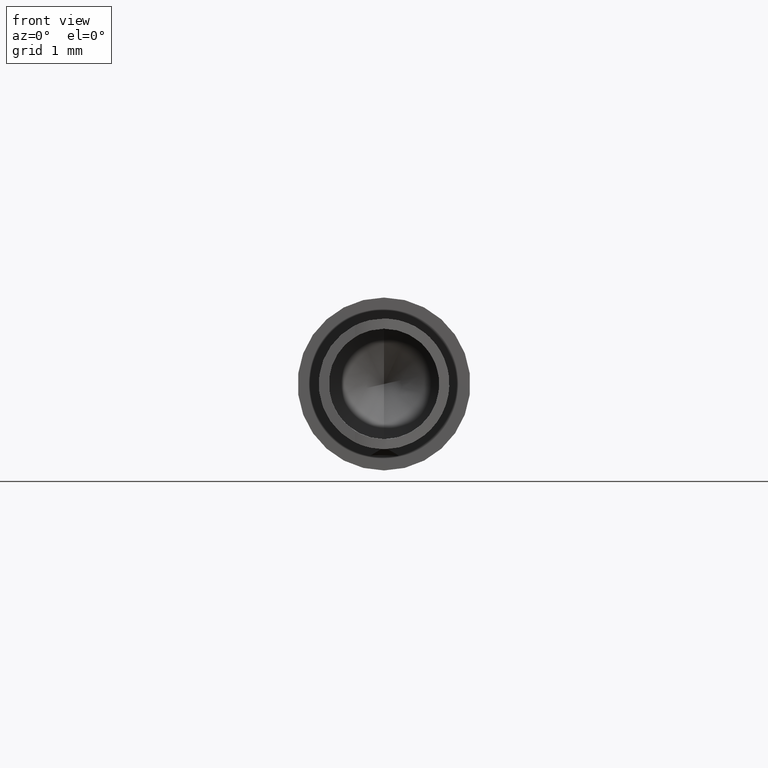
[diagram: clean part render]
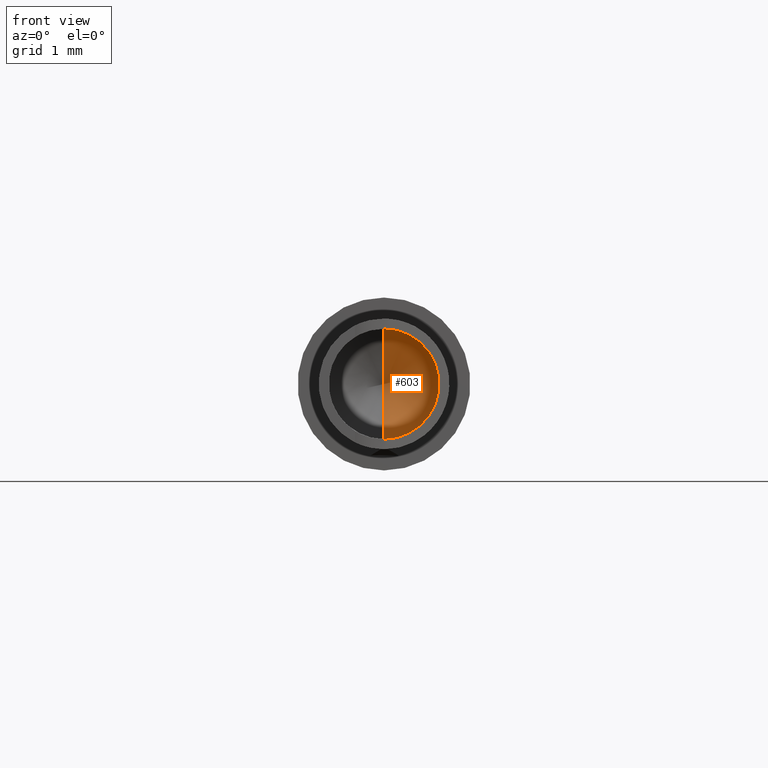
[diagram: same view with one face highlighted and labeled with its STEP entity id]
A machine part, front view. The second image highlights one B-rep face of the part: STEP entity #603.
In plain terms, the highlighted conical surface has half-angle 59 deg.
Its self-contained STEP definition (entity closure, byte-faithful):
#152 = ORIENTED_EDGE ( 'NONE', *, *, #687, .T. ) ;
#165 = CARTESIAN_POINT ( 'NONE',  ( 0.0000000000000000000, -5.500000000000000000, -0.5999999999999994200 ) ) ;
#174 = EDGE_CURVE ( 'NONE', #332, #283, #520, .T. ) ;
#210 = ORIENTED_EDGE ( 'NONE', *, *, #492, .F. ) ;
#251 = CONICAL_SURFACE ( 'NONE', #316, 0.5999999999999994200, 1.029744258676653400 ) ;
#253 = DIRECTION ( 'NONE',  ( -0.0000000000000000000, -1.000000000000000000, -0.0000000000000000000 ) ) ;
#283 = VERTEX_POINT ( 'NONE', #417 ) ;
#301 = DIRECTION ( 'NONE',  ( -0.0000000000000000000, -1.000000000000000000, -0.0000000000000000000 ) ) ;
#316 = AXIS2_PLACEMENT_3D ( 'NONE', #629, #301, #886 ) ;
#332 = VERTEX_POINT ( 'NONE', #934 ) ;
#360 = VERTEX_POINT ( 'NONE', #362 ) ;
#362 = CARTESIAN_POINT ( 'NONE',  ( 7.347880794884114100E-017, -5.500000000000000000, 0.5999999999999994200 ) ) ;
#417 = CARTESIAN_POINT ( 'NONE',  ( 0.0000000000000000000, -5.500000000000000000, -0.5999999999999994200 ) ) ;
#464 = ORIENTED_EDGE ( 'NONE', *, *, #174, .T. ) ;
#492 = EDGE_CURVE ( 'NONE', #332, #360, #1070, .T. ) ;
#510 = DIRECTION ( 'NONE',  ( 0.0000000000000000000, 0.0000000000000000000, -1.000000000000000000 ) ) ;
#520 = LINE ( 'NONE', #165, #719 ) ;
#603 = ADVANCED_FACE ( 'NONE', ( #1013 ), #251, .F. ) ;
#629 = CARTESIAN_POINT ( 'NONE',  ( 0.0000000000000000000, -5.500000000000000000, 0.0000000000000000000 ) ) ;
#687 = EDGE_CURVE ( 'NONE', #283, #360, #706, .T. ) ;
#706 = CIRCLE ( 'NONE', #988, 0.5999999999999994200 ) ;
#719 = VECTOR ( 'NONE', #1076, 1000.000000000000000 ) ;
#753 = CARTESIAN_POINT ( 'NONE',  ( 0.0000000000000000000, -5.500000000000000000, 0.0000000000000000000 ) ) ;
#761 = CARTESIAN_POINT ( 'NONE',  ( 7.347880794884112800E-017, -5.500000000000000000, 0.5999999999999994200 ) ) ;
#881 = EDGE_LOOP ( 'NONE', ( #210, #464, #152 ) ) ;
#886 = DIRECTION ( 'NONE',  ( 0.0000000000000000000, 0.0000000000000000000, -1.000000000000000000 ) ) ;
#917 = VECTOR ( 'NONE', #1034, 1000.000000000000000 ) ;
#934 = CARTESIAN_POINT ( 'NONE',  ( -5.781597637180371800E-016, -5.139483628583462900, 0.0000000000000000000 ) ) ;
#988 = AXIS2_PLACEMENT_3D ( 'NONE', #753, #253, #510 ) ;
#1013 = FACE_OUTER_BOUND ( 'NONE', #881, .T. ) ;
#1034 = DIRECTION ( 'NONE',  ( 1.049727191138618000E-016, -0.5150380749100550400, 0.8571673007021117800 ) ) ;
#1070 = LINE ( 'NONE', #761, #917 ) ;
#1076 = DIRECTION ( 'NONE',  ( 0.0000000000000000000, -0.5150380749100550400, -0.8571673007021117800 ) ) ;